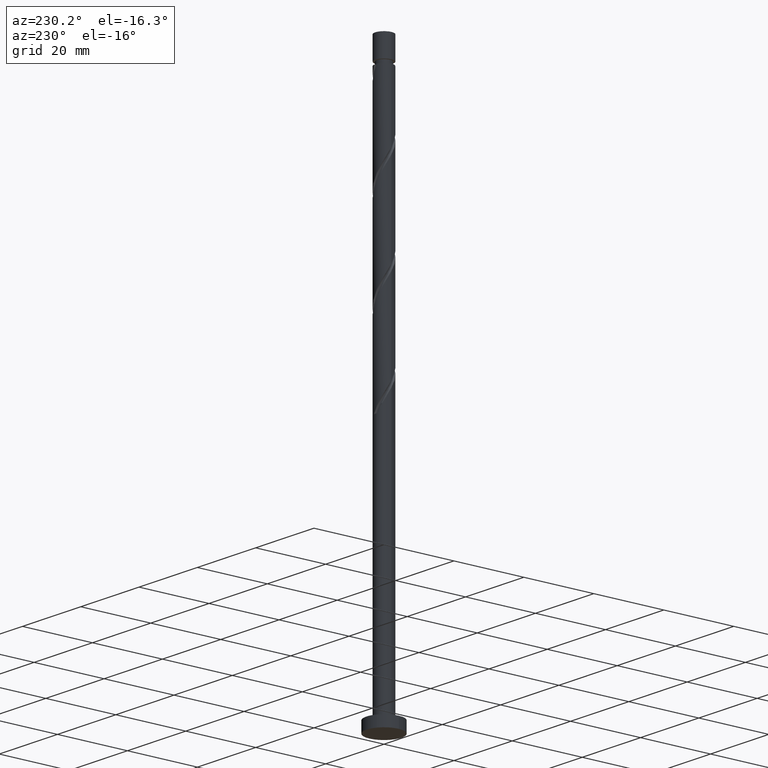
[diagram: clean part render]
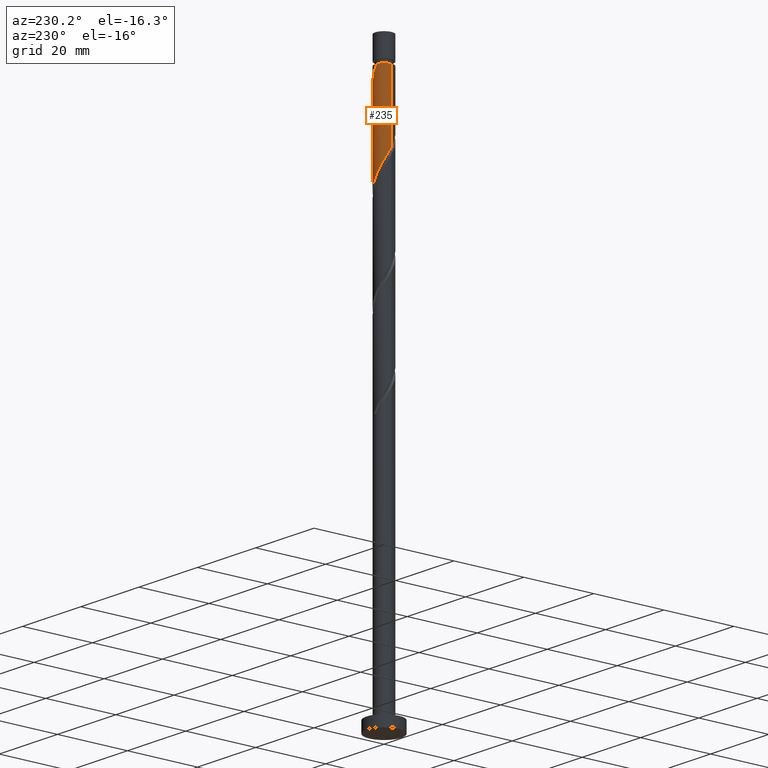
[diagram: same view with one face highlighted and labeled with its STEP entity id]
A machine part, auxiliary view. The second image highlights one B-rep face of the part: STEP entity #235.
In plain terms, the highlighted cylindrical surface (edge-blend (fillet) strip) has radius 2.5 mm, axis along (-0, -0, -1).
Its self-contained STEP definition (entity closure, byte-faithful):
#4 = CARTESIAN_POINT ( 'NONE',  ( -1.525797355502942487, 1.980389464206529837, 129.7092961332197376 ) ) ;
#12 = CARTESIAN_POINT ( 'NONE',  ( 0.1452368982656260243, 2.521528798126809967, 126.6789931029166496 ) ) ;
#18 = CARTESIAN_POINT ( 'NONE',  ( -0.4974937185533275241, 2.450000000000001510, 152.7395991635227972 ) ) ;
#25 = CARTESIAN_POINT ( 'NONE',  ( 1.167586491630752343, 2.210597608014944093, 124.8608112847349076 ) ) ;
#127 = CARTESIAN_POINT ( 'NONE',  ( 2.500000000000000444, -3.155889168437744836E-15, 120.2557203094903002 ) ) ;
#144 = CARTESIAN_POINT ( 'NONE',  ( 2.233329684002607785, 1.179593048026943647, 147.2850537089773013 ) ) ;
#169 = ORIENTED_EDGE ( 'NONE', *, *, #782, .T. ) ;
#176 = VERTEX_POINT ( 'NONE', #1508 ) ;
#212 =( BOUNDED_CURVE ( )  B_SPLINE_CURVE ( 2, ( #386, #277, #268, #1289, #634, #1296, #1150, #1411, #4, #507, #1305, #1172, #643, #12, #625, #1417, #25, #532, #378, #1282, #895, #1143, #1659, #769, #127 ),
 .UNSPECIFIED., .F., .T. ) 
 B_SPLINE_CURVE_WITH_KNOTS ( ( 3, 2, 2, 2, 2, 2, 2, 2, 2, 2, 2, 2, 3 ),
 ( 0.4295252162417514397, 0.4318181818181818232, 0.4431818181818181768, 0.4545454545454545303, 0.4659090909090908839, 0.4772727272727272929, 0.4886363636363636465, 0.5000000000000000000, 0.5113636363636363535, 0.5227272727272727071, 0.5340909090909090606, 0.5454545454545454142, 0.5545252162417512176 ),
 .UNSPECIFIED. ) 
 CURVE ( )  GEOMETRIC_REPRESENTATION_ITEM ( )  RATIONAL_B_SPLINE_CURVE ( ( 0.9061101570135601246, 0.9072237824201422329, 0.9090909090909196077, 0.8998376744372220681, 0.9090909090909196077, 0.8998376744372220681, 0.9090909090909196077, 0.8998376744372220681, 0.9090909090909196077, 0.8998376744372220681, 0.9090909090909196077, 0.8998376744372220681, 0.9090909090909196077, 0.8998376744372220681, 0.9090909090909196077, 0.8998376744372220681, 0.9090909090909196077, 0.8998376744372220681, 0.9090909090909196077, 0.8998376744372220681, 0.9090909090909196077, 0.8998376744372220681, 0.9090909090909196077, 0.9017048011079995540, 0.9061101570135599026 ) ) 
 REPRESENTATION_ITEM ( '' )  );
#227 = DIRECTION ( 'NONE',  ( -1.000000000000000000, 0.000000000000000000, 0.000000000000000000 ) ) ;
#228 = CARTESIAN_POINT ( 'NONE',  ( -2.499999999999993339, 0.000000000000000000, 152.7395991635227688 ) ) ;
#235 = ADVANCED_FACE ( 'NONE', ( #744 ), #1231, .T. ) ;
#243 = CARTESIAN_POINT ( 'NONE',  ( 0.5710429720501333239, 2.460307127265380256, 150.9214173453410126 ) ) ;
#250 = DIRECTION ( 'NONE',  ( -0.000000000000000000, -0.000000000000000000, -1.000000000000000000 ) ) ;
#268 = CARTESIAN_POINT ( 'NONE',  ( -2.495863270706175197, 0.1437585960555966269, 133.3456597695833636 ) ) ;
#277 = CARTESIAN_POINT ( 'NONE',  ( -2.500000000000000000, 0.07193881630955949180, 133.4669556381054178 ) ) ;
#370 = LINE ( 'NONE', #1550, #1648 ) ;
#378 = CARTESIAN_POINT ( 'NONE',  ( 1.743088351060507524, 1.792105744758707209, 123.6486900726136611 ) ) ;
#386 = CARTESIAN_POINT ( 'NONE',  ( -2.500000000000000888, 6.094904436674791625E-15, 133.5890536428236715 ) ) ;
#393 = CARTESIAN_POINT ( 'NONE',  ( 2.354261794510399408, 0.8411013035946938166, 146.6789931029166780 ) ) ;
#399 = VECTOR ( 'NONE', #1382, 1000.000000000000000 ) ;
#403 = CARTESIAN_POINT ( 'NONE',  ( -0.1452368982656325469, 2.521528798126814408, 152.1335385574621739 ) ) ;
#428 = CIRCLE ( 'NONE', #810, 2.499999999999993339 ) ;
#449 = DIRECTION ( 'NONE',  ( -0.000000000000000000, -0.000000000000000000, -1.000000000000000000 ) ) ;
#460 = EDGE_CURVE ( 'NONE', #1656, #569, #370, .T. ) ;
#472 = CARTESIAN_POINT ( 'NONE',  ( 0.000000000000000000, 0.000000000000000000, 160.0000000000000000 ) ) ;
#487 = AXIS2_PLACEMENT_3D ( 'NONE', #472, #990, #227 ) ;
#490 = EDGE_CURVE ( 'NONE', #1546, #176, #894, .T. ) ;
#503 = EDGE_CURVE ( 'NONE', #569, #1462, #212, .T. ) ;
#507 = CARTESIAN_POINT ( 'NONE',  ( -1.241060336893708760, 2.199766004962784738, 129.1032355271591427 ) ) ;
#532 = CARTESIAN_POINT ( 'NONE',  ( 1.485422444420509969, 2.042724014156697798, 124.2547506786742559 ) ) ;
#569 = VERTEX_POINT ( 'NONE', #703 ) ;
#598 = ORIENTED_EDGE ( 'NONE', *, *, #460, .F. ) ;
#623 = CARTESIAN_POINT ( 'NONE',  ( 2.500000000000000444, -3.155889168437744836E-15, 120.2557203094903002 ) ) ;
#625 = CARTESIAN_POINT ( 'NONE',  ( 0.4974937185533113704, 2.449999999999999289, 126.0729324968560832 ) ) ;
#634 = CARTESIAN_POINT ( 'NONE',  ( -2.354261794510395411, 0.8411013035946935945, 132.1335385574621455 ) ) ;
#643 = CARTESIAN_POINT ( 'NONE',  ( -0.2129030368922528726, 2.490917962696093113, 127.2850537089773013 ) ) ;
#651 = CARTESIAN_POINT ( 'NONE',  ( 1.810534374112180656, 1.761012923450276935, 148.4971749210985479 ) ) ;
#659 = CARTESIAN_POINT ( 'NONE',  ( 2.500000000000003997, 1.839688946530046523E-15, 145.2234780175552373 ) ) ;
#703 = CARTESIAN_POINT ( 'NONE',  ( -2.500000000000000888, 6.094904436674791625E-15, 133.5890536428236715 ) ) ;
#739 = LINE ( 'NONE', #1651, #399 ) ;
#744 = FACE_OUTER_BOUND ( 'NONE', #1459, .T. ) ;
#769 = CARTESIAN_POINT ( 'NONE',  ( 2.499999999999999556, 0.2863223184628082008, 120.7416802624616423 ) ) ;
#777 = CARTESIAN_POINT ( 'NONE',  ( 2.495863270706177861, 0.1437585960555959053, 145.4668718907954883 ) ) ;
#782 = EDGE_CURVE ( 'NONE', #1656, #176, #428, .T. ) ;
#795 = CARTESIAN_POINT ( 'NONE',  ( 2.021932029057393887, 1.470302985738609847, 147.8911143150379246 ) ) ;
#810 = AXIS2_PLACEMENT_3D ( 'NONE', #993, #449, #1484 ) ;
#894 =( BOUNDED_CURVE ( )  B_SPLINE_CURVE ( 2, ( #659, #1523, #777, #1022, #393, #144, #795, #651, #912, #922, #1563, #243, #1029, #403, #18 ),
 .UNSPECIFIED., .F., .T. ) 
 B_SPLINE_CURVE_WITH_KNOTS ( ( 3, 2, 2, 2, 2, 2, 2, 3 ),
 ( 0.6795252162417517727, 0.6818181818181818787, 0.6931818181818181213, 0.7045454545454546968, 0.7159090909090909394, 0.7272727272727274039, 0.7386363636363638685, 0.7500000000000002220 ),
 .UNSPECIFIED. ) 
 CURVE ( )  GEOMETRIC_REPRESENTATION_ITEM ( )  RATIONAL_B_SPLINE_CURVE ( ( 0.9061101570135668970, 0.9072237824201490053, 0.9090909090909261581, 0.8998376744372282854, 0.9090909090909261581, 0.8998376744372282854, 0.9090909090909261581, 0.8998376744372282854, 0.9090909090909261581, 0.8998376744372282854, 0.9090909090909261581, 0.8998376744372282854, 0.9090909090909261581, 0.8998376744372280633, 0.9090909090909263801 ) ) 
 REPRESENTATION_ITEM ( '' )  );
#895 = CARTESIAN_POINT ( 'NONE',  ( 2.177375558832922664, 1.228428132125367167, 122.4365688604924429 ) ) ;
#912 = CARTESIAN_POINT ( 'NONE',  ( 1.525797355502944930, 1.980389464206532946, 149.1032355271590859 ) ) ;
#922 = CARTESIAN_POINT ( 'NONE',  ( 1.241060336893710536, 2.199766004962788735, 149.7092961332198229 ) ) ;
#990 = DIRECTION ( 'NONE',  ( -0.000000000000000000, -0.000000000000000000, -1.000000000000000000 ) ) ;
#993 = CARTESIAN_POINT ( 'NONE',  ( 0.000000000000000000, 0.000000000000000000, 152.7395991635227688 ) ) ;
#1022 = CARTESIAN_POINT ( 'NONE',  ( 2.475193905018193252, 0.5026095591624444303, 146.0729324968561968 ) ) ;
#1029 = CARTESIAN_POINT ( 'NONE',  ( 0.2129030368922538718, 2.490917962696097554, 151.5274779514015222 ) ) ;
#1143 = CARTESIAN_POINT ( 'NONE',  ( 2.353996859965339361, 0.9153687888900159386, 121.8305082544318338 ) ) ;
#1150 = CARTESIAN_POINT ( 'NONE',  ( -2.021932029057389446, 1.470302985738609181, 130.9214173453409273 ) ) ;
#1172 = CARTESIAN_POINT ( 'NONE',  ( -0.5710429720501314366, 2.460307127265375371, 127.8911143150379104 ) ) ;
#1216 = ORIENTED_EDGE ( 'NONE', *, *, #1519, .T. ) ;
#1231 = CYLINDRICAL_SURFACE ( 'NONE', #487, 2.500000000000000000 ) ;
#1282 = CARTESIAN_POINT ( 'NONE',  ( 2.000754257700505523, 1.541487475360715953, 123.0426294665530520 ) ) ;
#1289 = CARTESIAN_POINT ( 'NONE',  ( -2.475193905018187035, 0.5026095591624444303, 132.7395991635227688 ) ) ;
#1296 = CARTESIAN_POINT ( 'NONE',  ( -2.233329684002602900, 1.179593048026942315, 131.5274779514015222 ) ) ;
#1305 = CARTESIAN_POINT ( 'NONE',  ( -0.9060516544719198206, 2.330036566114079832, 128.4971749210985195 ) ) ;
#1382 = DIRECTION ( 'NONE',  ( -0.000000000000000000, -0.000000000000000000, -1.000000000000000000 ) ) ;
#1408 = CARTESIAN_POINT ( 'NONE',  ( 2.500000000000003997, 1.839688946530046523E-15, 145.2234780175552373 ) ) ;
#1411 = CARTESIAN_POINT ( 'NONE',  ( -1.810534374112176215, 1.761012923450275158, 130.3153567392803325 ) ) ;
#1417 = CARTESIAN_POINT ( 'NONE',  ( 0.8497505388409958282, 2.378471201873189500, 125.4668718907954457 ) ) ;
#1453 = ORIENTED_EDGE ( 'NONE', *, *, #503, .F. ) ;
#1459 = EDGE_LOOP ( 'NONE', ( #1587, #1216, #1453, #598, #169 ) ) ;
#1462 = VERTEX_POINT ( 'NONE', #623 ) ;
#1484 = DIRECTION ( 'NONE',  ( -1.000000000000000000, 0.000000000000000000, 0.000000000000000000 ) ) ;
#1508 = CARTESIAN_POINT ( 'NONE',  ( -0.4974937185533275241, 2.450000000000001510, 152.7395991635227972 ) ) ;
#1519 = EDGE_CURVE ( 'NONE', #1546, #1462, #739, .T. ) ;
#1523 = CARTESIAN_POINT ( 'NONE',  ( 2.500000000000002220, 0.07193881630956819317, 145.3455760222734341 ) ) ;
#1546 = VERTEX_POINT ( 'NONE', #1408 ) ;
#1550 = CARTESIAN_POINT ( 'NONE',  ( -2.500000000000000000, 0.000000000000000000, 160.0000000000000000 ) ) ;
#1563 = CARTESIAN_POINT ( 'NONE',  ( 0.9060516544719215970, 2.330036566114083829, 150.3153567392803325 ) ) ;
#1587 = ORIENTED_EDGE ( 'NONE', *, *, #490, .F. ) ;
#1648 = VECTOR ( 'NONE', #250, 1000.000000000000000 ) ;
#1651 = CARTESIAN_POINT ( 'NONE',  ( 2.500000000000000000, 3.061616997868383141E-16, 160.0000000000000000 ) ) ;
#1656 = VERTEX_POINT ( 'NONE', #228 ) ;
#1659 = CARTESIAN_POINT ( 'NONE',  ( 2.435264748179749805, 0.5652305779706334743, 121.2244476483712390 ) ) ;